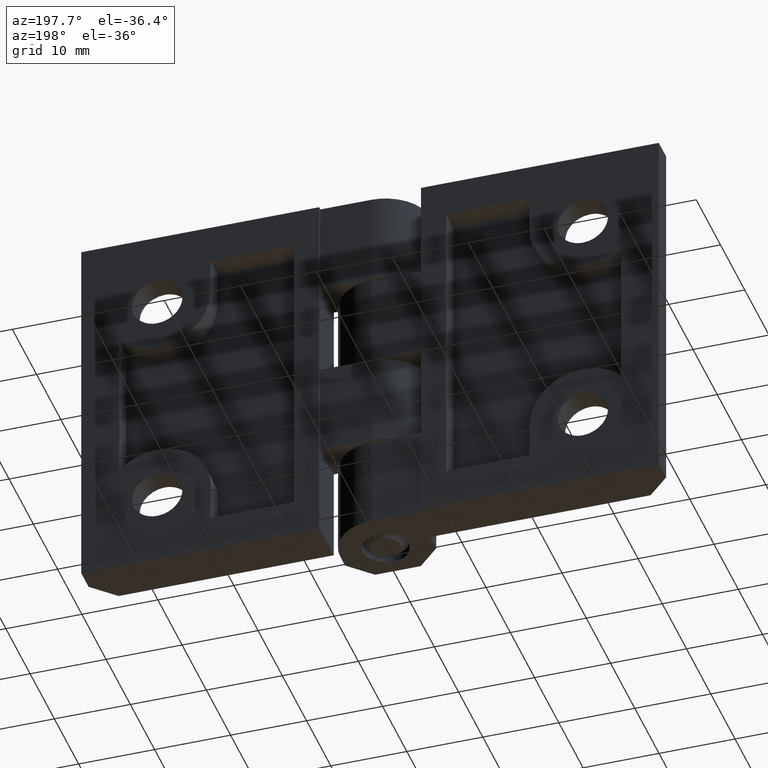
[diagram: clean part render]
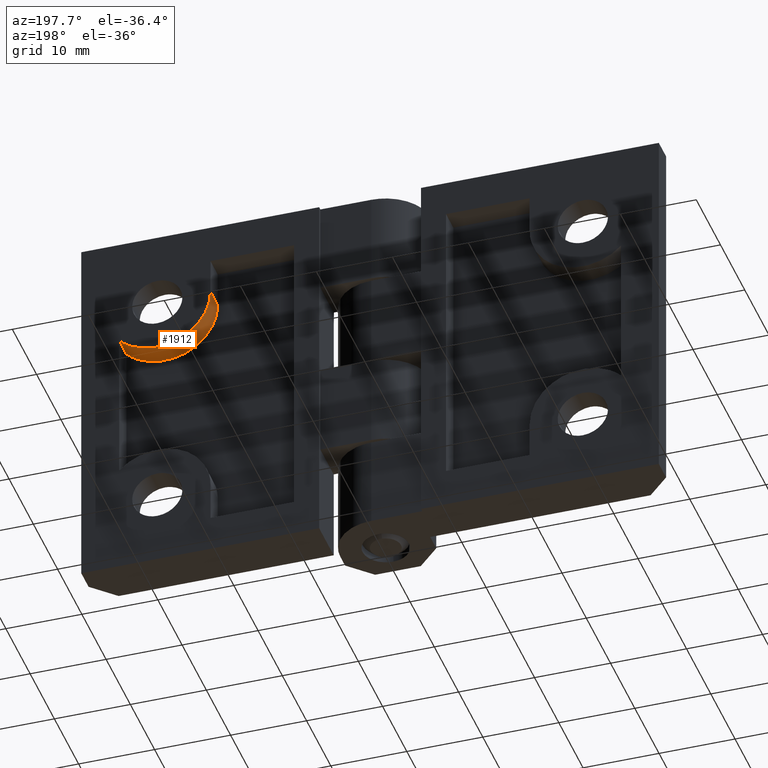
[diagram: same view with one face highlighted and labeled with its STEP entity id]
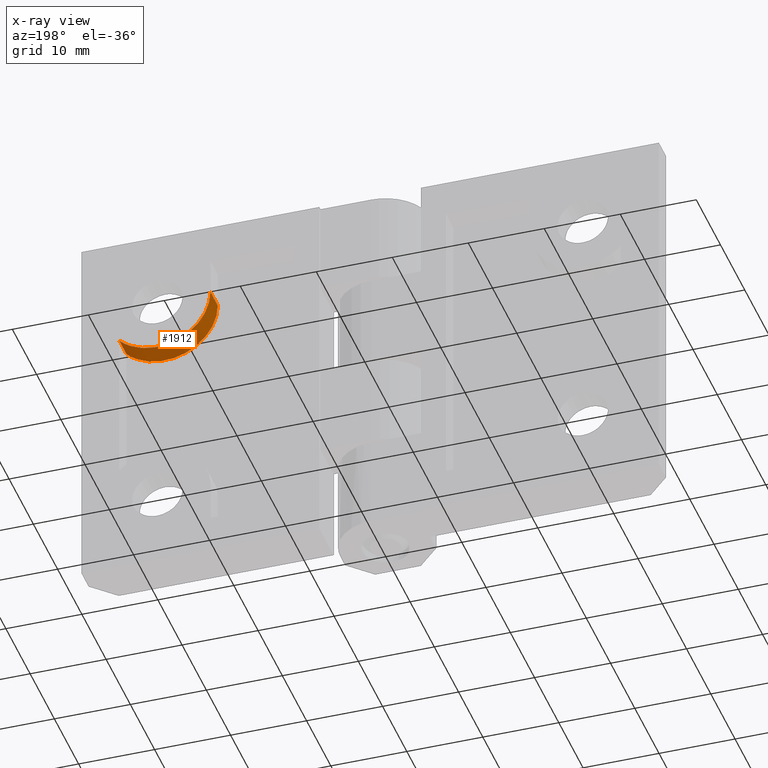
[diagram: x-ray of the same camera — body ghosted, the highlighted face saturated]
A machine part, auxiliary view. The second image highlights one B-rep face of the part: STEP entity #1912.
The next image is the same camera in x-ray: the body ghosted, the highlighted face saturated — about 0% of this face is hidden behind the body in this view.
In plain terms, the highlighted face is a freeform B-spline surface patch.
Its self-contained STEP definition (entity closure, byte-faithful):
#1612=CARTESIAN_POINT('',(21.000003090314600,3.500000308733655,40.000001899898052));
#1613=VERTEX_POINT('',#1612);
#1614=CARTESIAN_POINT('',(33.000003660284001,3.500000308733655,35.101022181640843));
#1615=VERTEX_POINT('',#1614);
#1616=CARTESIAN_POINT('',(21.000003090314650,3.500000308733655,40.000001899898052));
#1617=CARTESIAN_POINT('',(21.000003090314657,3.500000308733655,35.296875561616574));
#1618=CARTESIAN_POINT('',(25.354251986065162,3.500000308733655,33.519260893671778));
#1619=CARTESIAN_POINT('',(29.708500881815667,3.500000308733655,31.741646225726996));
#1620=CARTESIAN_POINT('',(33.000003660284001,3.500000308733655,35.101022181640843));
#1628=(BOUNDED_CURVE()B_SPLINE_CURVE(2,(#1616,#1617,#1618,#1619,#1620),.UNSPECIFIED.,.F.,.U.)B_SPLINE_CURVE_WITH_KNOTS((3,2,3),(0.0,0.500000000000000,1.0),.UNSPECIFIED.)CURVE()GEOMETRIC_REPRESENTATION_ITEM()RATIONAL_B_SPLINE_CURVE((1.0,0.830049538584690,1.0,0.830049538584690,1.0))REPRESENTATION_ITEM(''));
#1629=EDGE_CURVE('',#1613,#1615,#1628,.T.);
#1696=CARTESIAN_POINT('',(21.000003090314600,6.500000308733660,40.000001899898052));
#1697=VERTEX_POINT('',#1696);
#1705=CARTESIAN_POINT('',(21.000003090314600,3.500000308733655,40.000001899898052));
#1706=CARTESIAN_POINT('',(21.000003090314600,6.500000308733660,40.000001899898052));
#1707=QUASI_UNIFORM_CURVE('',1,(#1705,#1706),.UNSPECIFIED.,.F.,.U.);
#1708=EDGE_CURVE('',#1613,#1697,#1707,.T.);
#1857=CARTESIAN_POINT('',(33.000003660284001,6.500000308733660,35.101022181640843));
#1858=VERTEX_POINT('',#1857);
#1866=CARTESIAN_POINT('',(33.000003660284001,3.500000308733655,35.101022181640843));
#1867=CARTESIAN_POINT('',(33.000003660284001,6.500000308733660,35.101022181640843));
#1868=QUASI_UNIFORM_CURVE('',1,(#1866,#1867),.UNSPECIFIED.,.F.,.U.);
#1869=EDGE_CURVE('',#1615,#1858,#1868,.T.);
#1874=CARTESIAN_POINT('',(21.000269628878119,3.425000308733655,40.061087651288076));
#1875=CARTESIAN_POINT('',(21.000269628878119,6.576875308733661,40.061087651288076));
#1876=CARTESIAN_POINT('',(20.957892935282342,3.425000308733654,35.205199535204763));
#1877=CARTESIAN_POINT('',(20.957892935282342,6.576875308733661,35.205199535204763));
#1878=CARTESIAN_POINT('',(25.491427656828751,3.425000308733655,33.464938604018798));
#1879=CARTESIAN_POINT('',(25.491427656828751,6.576875308733661,33.464938604018798));
#1880=CARTESIAN_POINT('',(30.024962378375168,3.425000308733654,31.724677672832826));
#1881=CARTESIAN_POINT('',(30.024962378375168,6.576875308733661,31.724677672832826));
#1882=CARTESIAN_POINT('',(33.242693717334227,3.425000308733655,35.361661342078527));
#1883=CARTESIAN_POINT('',(33.242693717334227,6.576875308733661,35.361661342078527));
#1891=(BOUNDED_SURFACE()B_SPLINE_SURFACE(1,2,((#1874,#1876,#1878,#1880,#1882),(#1875,#1877,#1879,#1881,#1883)),.UNSPECIFIED.,.F.,.F.,.U.)B_SPLINE_SURFACE_WITH_KNOTS((2,2),(3,2,3),(0.0,3.151875000000007),(0.0,8.761253225490950,17.522506450981901),.UNSPECIFIED.)GEOMETRIC_REPRESENTATION_ITEM()RATIONAL_B_SPLINE_SURFACE(((1.0,0.821646937942164,1.0,0.821646937942164,1.0),(1.0,0.821646937942164,1.0,0.821646937942164,1.0)))REPRESENTATION_ITEM('')SURFACE());
#1892=CARTESIAN_POINT('',(21.000003090314650,6.500000308733660,40.000001899898052));
#1893=CARTESIAN_POINT('',(21.000003090314657,6.500000308733661,35.296875561616574));
#1894=CARTESIAN_POINT('',(25.354251986065162,6.500000308733660,33.519260893671778));
#1895=CARTESIAN_POINT('',(29.708500881815667,6.500000308733661,31.741646225726996));
#1896=CARTESIAN_POINT('',(33.000003660284001,6.500000308733660,35.101022181640843));
#1904=(BOUNDED_CURVE()B_SPLINE_CURVE(2,(#1892,#1893,#1894,#1895,#1896),.UNSPECIFIED.,.F.,.U.)B_SPLINE_CURVE_WITH_KNOTS((3,2,3),(0.0,0.500000000000000,1.0),.UNSPECIFIED.)CURVE()GEOMETRIC_REPRESENTATION_ITEM()RATIONAL_B_SPLINE_CURVE((1.0,0.830049538584690,1.0,0.830049538584690,1.0))REPRESENTATION_ITEM(''));
#1905=EDGE_CURVE('',#1697,#1858,#1904,.T.);
#1906=ORIENTED_EDGE('',*,*,#1905,.T.);
#1907=ORIENTED_EDGE('',*,*,#1869,.F.);
#1908=ORIENTED_EDGE('',*,*,#1629,.F.);
#1909=ORIENTED_EDGE('',*,*,#1708,.T.);
#1910=EDGE_LOOP('',(#1906,#1907,#1908,#1909));
#1911=FACE_OUTER_BOUND('',#1910,.T.);
#1912=ADVANCED_FACE('',(#1911),#1891,.T.);